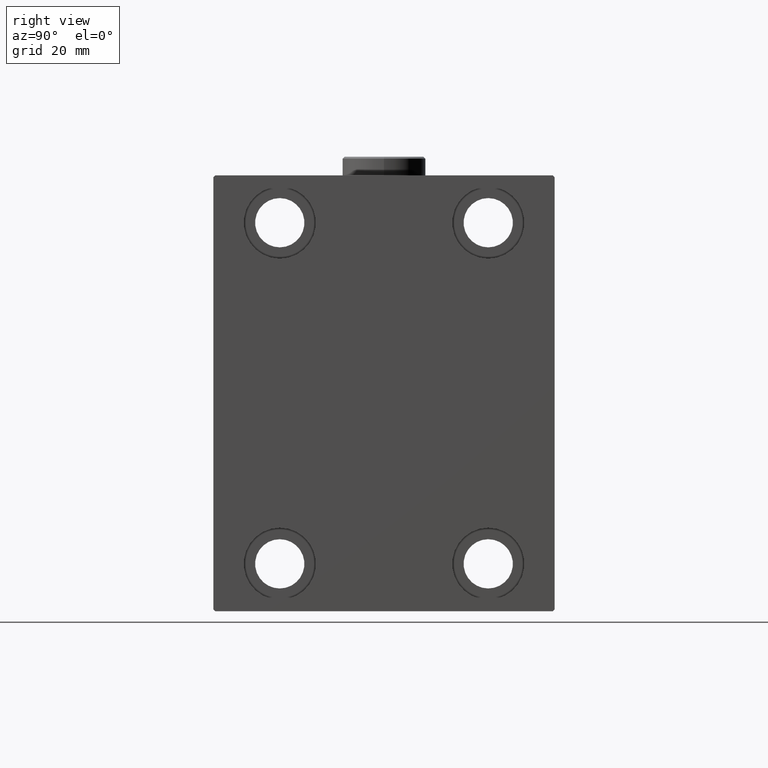
[diagram: clean part render]
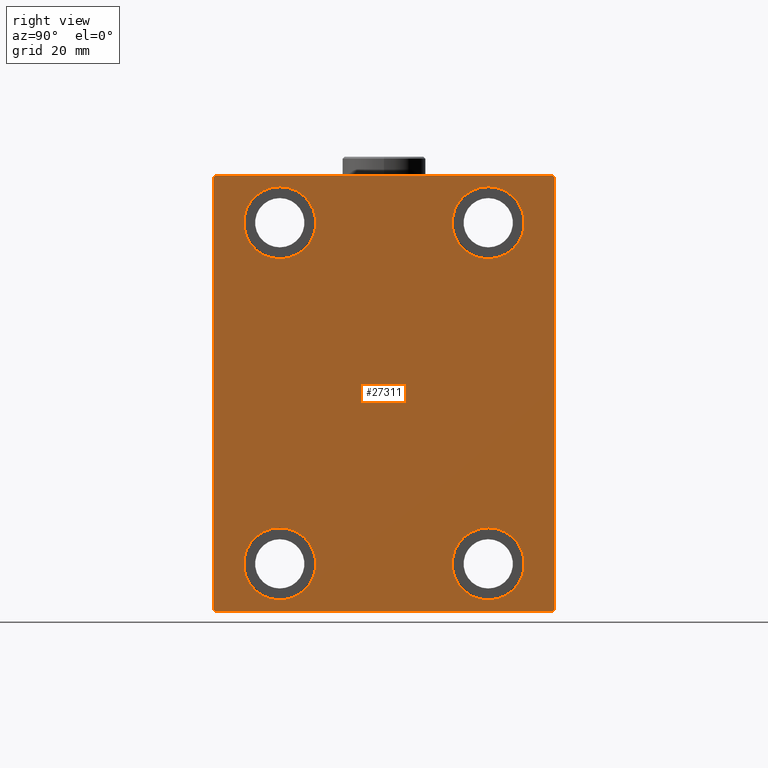
[diagram: same view with one face highlighted and labeled with its STEP entity id]
A machine part, right view. The second image highlights one B-rep face of the part: STEP entity #27311.
In plain terms, the highlighted planar face has unit normal (1, 0, 0).
Its self-contained STEP definition (entity closure, byte-faithful):
#90 = CIRCLE ( 'NONE', #31524, 9.500000000000001776 ) ;
#875 = CIRCLE ( 'NONE', #16891, 9.500000000000001776 ) ;
#1371 = VECTOR ( 'NONE', #23907, 1000.000000000000114 ) ;
#1642 = CARTESIAN_POINT ( 'NONE',  ( 108.0000000000000000, 44.50000000000002842, 57.50000000000000711 ) ) ;
#1902 = EDGE_CURVE ( 'NONE', #33516, #22316, #4439, .T. ) ;
#1975 = CARTESIAN_POINT ( 'NONE',  ( 108.0000000000000000, 45.00000000000000000, 57.00000000000000711 ) ) ;
#2199 = AXIS2_PLACEMENT_3D ( 'NONE', #22645, #5054, #8273 ) ;
#2400 = CARTESIAN_POINT ( 'NONE',  ( 108.0000000000000000, 0.000000000000000000, 0.000000000000000000 ) ) ;
#2447 = VERTEX_POINT ( 'NONE', #14988 ) ;
#3282 = DIRECTION ( 'NONE',  ( 0.000000000000000000, -1.000000000000000000, -1.541976423090495387E-16 ) ) ;
#3757 = DIRECTION ( 'NONE',  ( -1.000000000000000000, -0.000000000000000000, -0.000000000000000000 ) ) ;
#4328 = EDGE_CURVE ( 'NONE', #16718, #2447, #42933, .T. ) ;
#4437 = VERTEX_POINT ( 'NONE', #16955 ) ;
#4439 = CIRCLE ( 'NONE', #21105, 9.500000000000001776 ) ;
#4574 = EDGE_CURVE ( 'NONE', #7429, #4738, #29248, .T. ) ;
#4738 = VERTEX_POINT ( 'NONE', #40943 ) ;
#4876 = ORIENTED_EDGE ( 'NONE', *, *, #4328, .T. ) ;
#5054 = DIRECTION ( 'NONE',  ( -1.000000000000000000, -0.000000000000000000, -0.000000000000000000 ) ) ;
#5391 = CIRCLE ( 'NONE', #14143, 9.500000000000001776 ) ;
#5531 = CARTESIAN_POINT ( 'NONE',  ( 108.0000000000000000, -45.00000000000000000, 57.49999999999999289 ) ) ;
#5778 = EDGE_LOOP ( 'NONE', ( #42612, #17944 ) ) ;
#6095 = ORIENTED_EDGE ( 'NONE', *, *, #13810, .T. ) ;
#6485 = DIRECTION ( 'NONE',  ( 0.000000000000000000, 0.000000000000000000, -1.000000000000000000 ) ) ;
#6489 = EDGE_LOOP ( 'NONE', ( #20306, #4876, #12054, #18084, #20971, #6095, #31173, #37832 ) ) ;
#6805 = CARTESIAN_POINT ( 'NONE',  ( 108.0000000000000000, -51.00000000000001421, -51.00000000000001421 ) ) ;
#6914 = CARTESIAN_POINT ( 'NONE',  ( 108.0000000000000000, -45.00000000000000000, -57.00000000000003553 ) ) ;
#7411 = CARTESIAN_POINT ( 'NONE',  ( 108.0000000000000000, 27.50000000000001066, 45.00000000000000711 ) ) ;
#7429 = VERTEX_POINT ( 'NONE', #9628 ) ;
#7578 = DIRECTION ( 'NONE',  ( 0.000000000000000000, 0.000000000000000000, 1.000000000000000000 ) ) ;
#7934 = DIRECTION ( 'NONE',  ( -0.000000000000000000, 0.7071067811865474617, 0.7071067811865474617 ) ) ;
#8022 = CARTESIAN_POINT ( 'NONE',  ( 108.0000000000000000, 27.50000000000001066, 35.50000000000000711 ) ) ;
#8138 = ORIENTED_EDGE ( 'NONE', *, *, #14663, .T. ) ;
#8273 = DIRECTION ( 'NONE',  ( 0.000000000000000000, 0.000000000000000000, 1.000000000000000000 ) ) ;
#8598 = EDGE_LOOP ( 'NONE', ( #28922, #43837 ) ) ;
#8750 = EDGE_CURVE ( 'NONE', #13508, #4437, #90, .T. ) ;
#9248 = FACE_OUTER_BOUND ( 'NONE', #6489, .T. ) ;
#9549 = EDGE_CURVE ( 'NONE', #18191, #24869, #875, .T. ) ;
#9570 = CARTESIAN_POINT ( 'NONE',  ( 108.0000000000000000, -27.50000000000000000, -54.49999999999998579 ) ) ;
#9628 = CARTESIAN_POINT ( 'NONE',  ( 108.0000000000000000, -27.49999999999998934, 54.50000000000000711 ) ) ;
#9850 = CARTESIAN_POINT ( 'NONE',  ( 108.0000000000000000, 27.50000000000001066, 54.50000000000000711 ) ) ;
#10218 = CARTESIAN_POINT ( 'NONE',  ( 108.0000000000000000, 44.50000000000001421, -57.50000000000000711 ) ) ;
#10746 = DIRECTION ( 'NONE',  ( 0.000000000000000000, 0.000000000000000000, 1.000000000000000000 ) ) ;
#11351 = CARTESIAN_POINT ( 'NONE',  ( 108.0000000000000000, -51.00000000000000000, 51.00000000000000000 ) ) ;
#11579 = DIRECTION ( 'NONE',  ( 0.000000000000000000, -0.7071067811865474617, -0.7071067811865474617 ) ) ;
#11842 = VERTEX_POINT ( 'NONE', #10218 ) ;
#11930 = EDGE_CURVE ( 'NONE', #38859, #29015, #23715, .T. ) ;
#12054 = ORIENTED_EDGE ( 'NONE', *, *, #29835, .T. ) ;
#12356 = DIRECTION ( 'NONE',  ( -1.000000000000000000, -0.000000000000000000, -0.000000000000000000 ) ) ;
#13343 = FACE_BOUND ( 'NONE', #40880, .T. ) ;
#13508 = VERTEX_POINT ( 'NONE', #27660 ) ;
#13692 = VECTOR ( 'NONE', #3282, 1000.000000000000000 ) ;
#13810 = EDGE_CURVE ( 'NONE', #11842, #40513, #15241, .T. ) ;
#14143 = AXIS2_PLACEMENT_3D ( 'NONE', #34948, #27614, #34724 ) ;
#14455 = CIRCLE ( 'NONE', #30512, 9.500000000000001776 ) ;
#14663 = EDGE_CURVE ( 'NONE', #4738, #7429, #5391, .T. ) ;
#14819 = ORIENTED_EDGE ( 'NONE', *, *, #27781, .T. ) ;
#14988 = CARTESIAN_POINT ( 'NONE',  ( 108.0000000000000000, -45.00000000000000000, 56.99999999999999289 ) ) ;
#15241 = LINE ( 'NONE', #22097, #36052 ) ;
#15803 = DIRECTION ( 'NONE',  ( 0.000000000000000000, 0.000000000000000000, 1.000000000000000000 ) ) ;
#16384 = EDGE_CURVE ( 'NONE', #24869, #18191, #19305, .T. ) ;
#16694 = VERTEX_POINT ( 'NONE', #1975 ) ;
#16718 = VERTEX_POINT ( 'NONE', #35358 ) ;
#16842 = CARTESIAN_POINT ( 'NONE',  ( 108.0000000000000000, 27.50000000000001066, 45.00000000000000711 ) ) ;
#16891 = AXIS2_PLACEMENT_3D ( 'NONE', #7411, #3757, #21346 ) ;
#16955 = CARTESIAN_POINT ( 'NONE',  ( 108.0000000000000000, 27.49999999999998934, -35.49999999999998579 ) ) ;
#17944 = ORIENTED_EDGE ( 'NONE', *, *, #1902, .T. ) ;
#18084 = ORIENTED_EDGE ( 'NONE', *, *, #11930, .T. ) ;
#18191 = VERTEX_POINT ( 'NONE', #9850 ) ;
#18224 = DIRECTION ( 'NONE',  ( 0.000000000000000000, 0.000000000000000000, 1.000000000000000000 ) ) ;
#18566 = DIRECTION ( 'NONE',  ( 0.000000000000000000, 0.000000000000000000, -1.000000000000000000 ) ) ;
#18916 = CARTESIAN_POINT ( 'NONE',  ( 108.0000000000000000, -44.50000000000002842, -57.50000000000000711 ) ) ;
#19186 = VECTOR ( 'NONE', #34722, 1000.000000000000114 ) ;
#19305 = CIRCLE ( 'NONE', #34690, 9.500000000000001776 ) ;
#19738 = PLANE ( 'NONE',  #22438 ) ;
#19988 = CARTESIAN_POINT ( 'NONE',  ( 108.0000000000000000, -27.50000000000000000, -35.49999999999998579 ) ) ;
#20306 = ORIENTED_EDGE ( 'NONE', *, *, #23033, .T. ) ;
#20805 = CARTESIAN_POINT ( 'NONE',  ( 108.0000000000000000, 45.00000000000001421, -57.50000000000000711 ) ) ;
#20971 = ORIENTED_EDGE ( 'NONE', *, *, #22637, .T. ) ;
#21105 = AXIS2_PLACEMENT_3D ( 'NONE', #42793, #39358, #10746 ) ;
#21346 = DIRECTION ( 'NONE',  ( 0.000000000000000000, 0.000000000000000000, 1.000000000000000000 ) ) ;
#22097 = CARTESIAN_POINT ( 'NONE',  ( 108.0000000000000000, 51.00000000000001421, -51.00000000000001421 ) ) ;
#22316 = VERTEX_POINT ( 'NONE', #9570 ) ;
#22438 = AXIS2_PLACEMENT_3D ( 'NONE', #2400, #37608, #6485 ) ;
#22492 = EDGE_CURVE ( 'NONE', #22316, #33516, #34126, .T. ) ;
#22622 = VECTOR ( 'NONE', #11579, 1000.000000000000114 ) ;
#22637 = EDGE_CURVE ( 'NONE', #29015, #11842, #30334, .T. ) ;
#22645 = CARTESIAN_POINT ( 'NONE',  ( 108.0000000000000000, -27.49999999999998934, 45.00000000000000711 ) ) ;
#23006 = DIRECTION ( 'NONE',  ( 0.000000000000000000, 1.000000000000000000, 0.000000000000000000 ) ) ;
#23033 = EDGE_CURVE ( 'NONE', #39167, #16718, #24070, .T. ) ;
#23715 = LINE ( 'NONE', #6805, #19186 ) ;
#23907 = DIRECTION ( 'NONE',  ( -0.000000000000000000, -0.7071067811865474617, 0.7071067811865474617 ) ) ;
#24070 = LINE ( 'NONE', #33730, #13692 ) ;
#24690 = VECTOR ( 'NONE', #18566, 1000.000000000000000 ) ;
#24869 = VERTEX_POINT ( 'NONE', #8022 ) ;
#25342 = CARTESIAN_POINT ( 'NONE',  ( 108.0000000000000000, -27.50000000000000000, -44.99999999999998579 ) ) ;
#25850 = DIRECTION ( 'NONE',  ( -1.000000000000000000, -0.000000000000000000, -0.000000000000000000 ) ) ;
#26851 = FACE_BOUND ( 'NONE', #8598, .T. ) ;
#27311 = ADVANCED_FACE ( 'NONE', ( #13343, #43795, #26851, #40807, #9248 ), #19738, .T. ) ;
#27578 = EDGE_LOOP ( 'NONE', ( #8138, #41331 ) ) ;
#27614 = DIRECTION ( 'NONE',  ( -1.000000000000000000, -0.000000000000000000, -0.000000000000000000 ) ) ;
#27660 = CARTESIAN_POINT ( 'NONE',  ( 108.0000000000000000, 27.49999999999998934, -54.49999999999998579 ) ) ;
#27781 = EDGE_CURVE ( 'NONE', #4437, #13508, #14455, .T. ) ;
#28922 = ORIENTED_EDGE ( 'NONE', *, *, #16384, .T. ) ;
#29015 = VERTEX_POINT ( 'NONE', #18916 ) ;
#29248 = CIRCLE ( 'NONE', #2199, 9.500000000000001776 ) ;
#29301 = CARTESIAN_POINT ( 'NONE',  ( 108.0000000000000000, 27.49999999999998934, -44.99999999999998579 ) ) ;
#29669 = CARTESIAN_POINT ( 'NONE',  ( 108.0000000000000000, -45.00000000000000000, -57.50000000000000711 ) ) ;
#29835 = EDGE_CURVE ( 'NONE', #2447, #38859, #43732, .T. ) ;
#30199 = DIRECTION ( 'NONE',  ( 0.000000000000000000, 0.000000000000000000, 1.000000000000000000 ) ) ;
#30334 = LINE ( 'NONE', #29669, #37091 ) ;
#30512 = AXIS2_PLACEMENT_3D ( 'NONE', #29301, #25850, #7578 ) ;
#30777 = EDGE_CURVE ( 'NONE', #40513, #16694, #40367, .T. ) ;
#31173 = ORIENTED_EDGE ( 'NONE', *, *, #30777, .T. ) ;
#31385 = EDGE_CURVE ( 'NONE', #16694, #39167, #44086, .T. ) ;
#31524 = AXIS2_PLACEMENT_3D ( 'NONE', #36401, #12356, #30199 ) ;
#32069 = VECTOR ( 'NONE', #37991, 1000.000000000000000 ) ;
#32670 = DIRECTION ( 'NONE',  ( -1.000000000000000000, -0.000000000000000000, -0.000000000000000000 ) ) ;
#32880 = CARTESIAN_POINT ( 'NONE',  ( 108.0000000000000000, 45.00000000000001421, -57.00000000000003553 ) ) ;
#33516 = VERTEX_POINT ( 'NONE', #19988 ) ;
#33565 = CARTESIAN_POINT ( 'NONE',  ( 108.0000000000000000, 51.00000000000001421, 51.00000000000001421 ) ) ;
#33730 = CARTESIAN_POINT ( 'NONE',  ( 108.0000000000000000, 45.00000000000000000, 57.50000000000000711 ) ) ;
#34126 = CIRCLE ( 'NONE', #39962, 9.500000000000001776 ) ;
#34690 = AXIS2_PLACEMENT_3D ( 'NONE', #16842, #36865, #15803 ) ;
#34722 = DIRECTION ( 'NONE',  ( -0.000000000000000000, 0.7071067811865474617, -0.7071067811865474617 ) ) ;
#34724 = DIRECTION ( 'NONE',  ( 0.000000000000000000, 0.000000000000000000, 1.000000000000000000 ) ) ;
#34911 = ORIENTED_EDGE ( 'NONE', *, *, #8750, .T. ) ;
#34948 = CARTESIAN_POINT ( 'NONE',  ( 108.0000000000000000, -27.49999999999998934, 45.00000000000000711 ) ) ;
#35358 = CARTESIAN_POINT ( 'NONE',  ( 108.0000000000000000, -44.49999999999997158, 57.49999999999999289 ) ) ;
#36052 = VECTOR ( 'NONE', #7934, 1000.000000000000114 ) ;
#36401 = CARTESIAN_POINT ( 'NONE',  ( 108.0000000000000000, 27.49999999999998934, -44.99999999999998579 ) ) ;
#36865 = DIRECTION ( 'NONE',  ( -1.000000000000000000, -0.000000000000000000, -0.000000000000000000 ) ) ;
#37091 = VECTOR ( 'NONE', #23006, 1000.000000000000000 ) ;
#37608 = DIRECTION ( 'NONE',  ( 1.000000000000000000, 0.000000000000000000, 0.000000000000000000 ) ) ;
#37832 = ORIENTED_EDGE ( 'NONE', *, *, #31385, .T. ) ;
#37991 = DIRECTION ( 'NONE',  ( 0.000000000000000000, -1.206764157201257045E-16, 1.000000000000000000 ) ) ;
#38859 = VERTEX_POINT ( 'NONE', #6914 ) ;
#39167 = VERTEX_POINT ( 'NONE', #1642 ) ;
#39358 = DIRECTION ( 'NONE',  ( -1.000000000000000000, -0.000000000000000000, -0.000000000000000000 ) ) ;
#39962 = AXIS2_PLACEMENT_3D ( 'NONE', #25342, #32670, #18224 ) ;
#40367 = LINE ( 'NONE', #20805, #32069 ) ;
#40513 = VERTEX_POINT ( 'NONE', #32880 ) ;
#40807 = FACE_BOUND ( 'NONE', #5778, .T. ) ;
#40880 = EDGE_LOOP ( 'NONE', ( #34911, #14819 ) ) ;
#40943 = CARTESIAN_POINT ( 'NONE',  ( 108.0000000000000000, -27.49999999999998934, 35.50000000000000711 ) ) ;
#41331 = ORIENTED_EDGE ( 'NONE', *, *, #4574, .T. ) ;
#42612 = ORIENTED_EDGE ( 'NONE', *, *, #22492, .T. ) ;
#42793 = CARTESIAN_POINT ( 'NONE',  ( 108.0000000000000000, -27.50000000000000000, -44.99999999999998579 ) ) ;
#42933 = LINE ( 'NONE', #11351, #22622 ) ;
#43732 = LINE ( 'NONE', #5531, #24690 ) ;
#43795 = FACE_BOUND ( 'NONE', #27578, .T. ) ;
#43837 = ORIENTED_EDGE ( 'NONE', *, *, #9549, .T. ) ;
#44086 = LINE ( 'NONE', #33565, #1371 ) ;